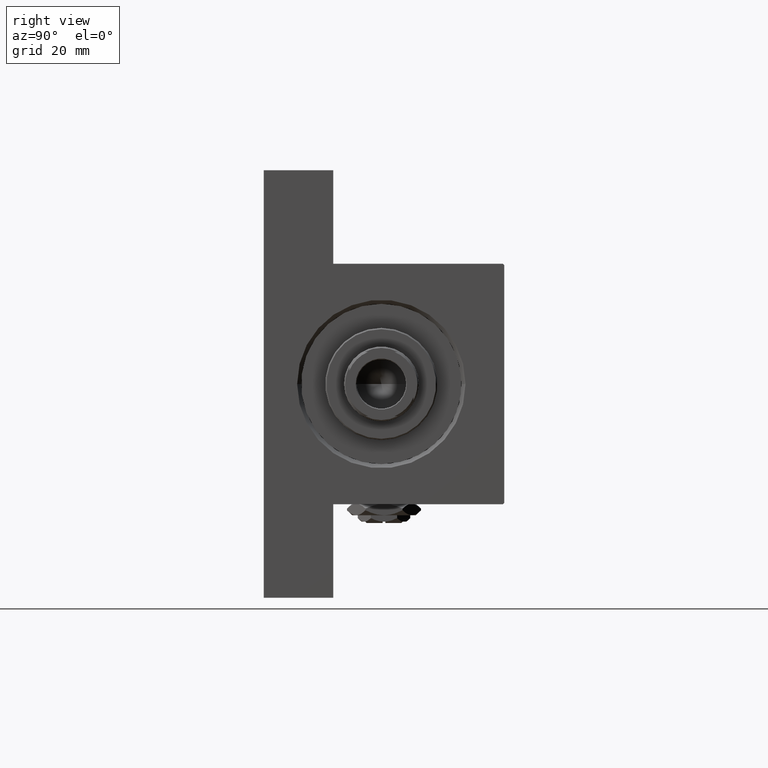
[diagram: clean part render]
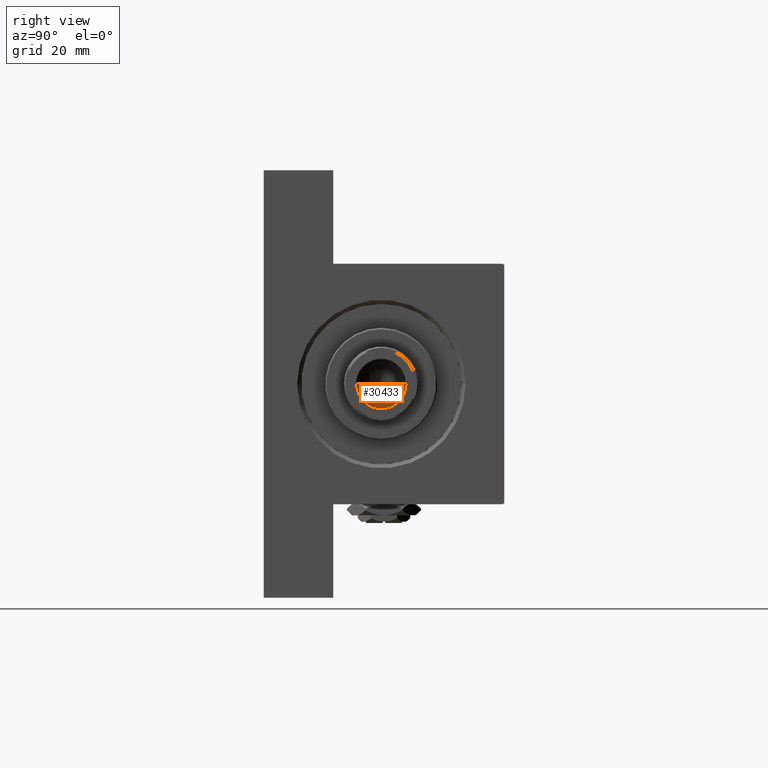
[diagram: same view with one face highlighted and labeled with its STEP entity id]
A machine part, right view. The second image highlights one B-rep face of the part: STEP entity #30433.
In plain terms, the highlighted conical surface has half-angle 59 deg.
Its self-contained STEP definition (entity closure, byte-faithful):
#1106 = FACE_OUTER_BOUND ( 'NONE', #27277, .T. ) ;
#2053 = CONICAL_SURFACE ( 'NONE', #2872, 9.249999999999992895, 1.029744258676653423 ) ;
#2324 = VERTEX_POINT ( 'NONE', #41671 ) ;
#2633 = CARTESIAN_POINT ( 'NONE',  ( 0.000000000000000000, 0.000000000000000000, 114.9999999999999858 ) ) ;
#2872 = AXIS2_PLACEMENT_3D ( 'NONE', #12400, #4627, #23958 ) ;
#4627 = DIRECTION ( 'NONE',  ( -0.000000000000000000, -0.000000000000000000, 1.000000000000000000 ) ) ;
#7381 = DIRECTION ( 'NONE',  ( -0.000000000000000000, -0.000000000000000000, 1.000000000000000000 ) ) ;
#8688 = CIRCLE ( 'NONE', #40773, 9.249999999999992895 ) ;
#12400 = CARTESIAN_POINT ( 'NONE',  ( 0.000000000000000000, 0.000000000000000000, 114.9999999999999858 ) ) ;
#16000 = ORIENTED_EDGE ( 'NONE', *, *, #36833, .T. ) ;
#17946 = DIRECTION ( 'NONE',  ( 1.000000000000000000, 0.000000000000000000, 0.000000000000000000 ) ) ;
#19277 = CARTESIAN_POINT ( 'NONE',  ( 9.249999999999992895, 0.000000000000000000, 114.9999999999999858 ) ) ;
#21015 = ORIENTED_EDGE ( 'NONE', *, *, #37611, .T. ) ;
#21286 = LINE ( 'NONE', #22289, #40901 ) ;
#22086 = VERTEX_POINT ( 'NONE', #19277 ) ;
#22289 = CARTESIAN_POINT ( 'NONE',  ( -9.249999999999992895, 1.132798289211300712E-15, 114.9999999999999858 ) ) ;
#23958 = DIRECTION ( 'NONE',  ( 1.000000000000000000, 0.000000000000000000, 0.000000000000000000 ) ) ;
#25304 = DIRECTION ( 'NONE',  ( -0.8571673007021117785, 1.049727191138617956E-16, 0.5150380749100550437 ) ) ;
#27277 = EDGE_LOOP ( 'NONE', ( #47504, #16000, #21015 ) ) ;
#27807 = VERTEX_POINT ( 'NONE', #31819 ) ;
#30433 = ADVANCED_FACE ( 'NONE', ( #1106 ), #2053, .F. ) ;
#31819 = CARTESIAN_POINT ( 'NONE',  ( -9.769621978240258809E-15, 0.000000000000000000, 109.4420392739950501 ) ) ;
#32842 = CARTESIAN_POINT ( 'NONE',  ( 9.249999999999992895, 0.000000000000000000, 114.9999999999999858 ) ) ;
#33103 = DIRECTION ( 'NONE',  ( 0.8571673007021117785, 0.000000000000000000, 0.5150380749100550437 ) ) ;
#36833 = EDGE_CURVE ( 'NONE', #27807, #22086, #40370, .T. ) ;
#37611 = EDGE_CURVE ( 'NONE', #22086, #2324, #8688, .T. ) ;
#40370 = LINE ( 'NONE', #32842, #47951 ) ;
#40773 = AXIS2_PLACEMENT_3D ( 'NONE', #2633, #7381, #17946 ) ;
#40901 = VECTOR ( 'NONE', #25304, 1000.000000000000000 ) ;
#41671 = CARTESIAN_POINT ( 'NONE',  ( -9.249999999999992895, 1.132798289211300712E-15, 114.9999999999999858 ) ) ;
#47504 = ORIENTED_EDGE ( 'NONE', *, *, #48735, .F. ) ;
#47951 = VECTOR ( 'NONE', #33103, 1000.000000000000000 ) ;
#48735 = EDGE_CURVE ( 'NONE', #27807, #2324, #21286, .T. ) ;